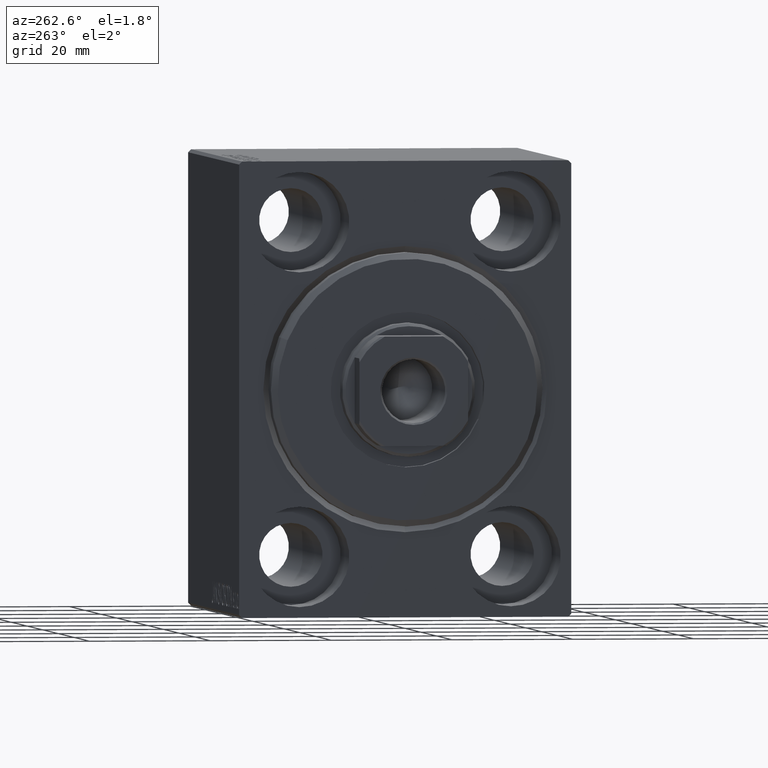
[diagram: clean part render]
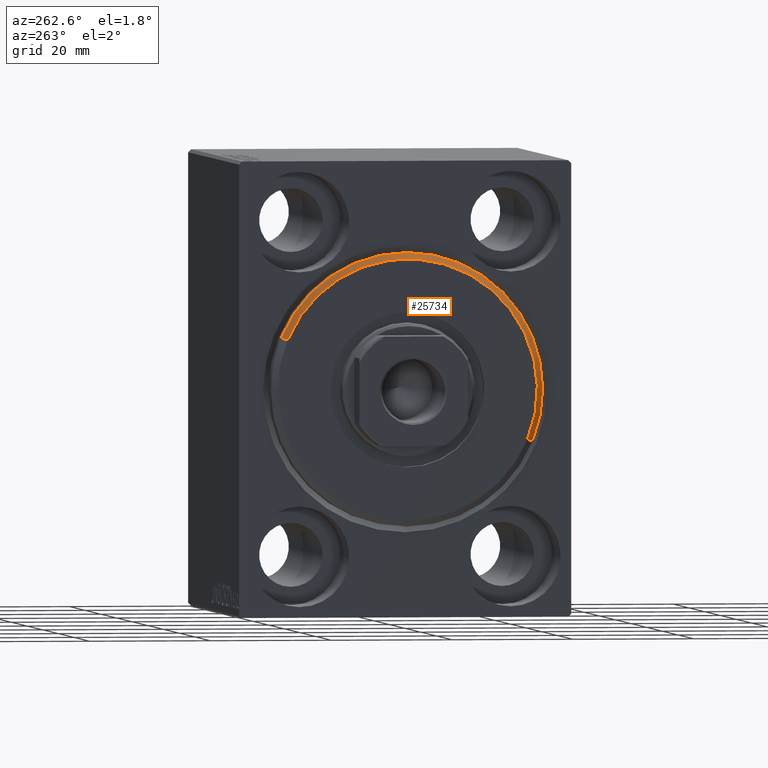
[diagram: same view with one face highlighted and labeled with its STEP entity id]
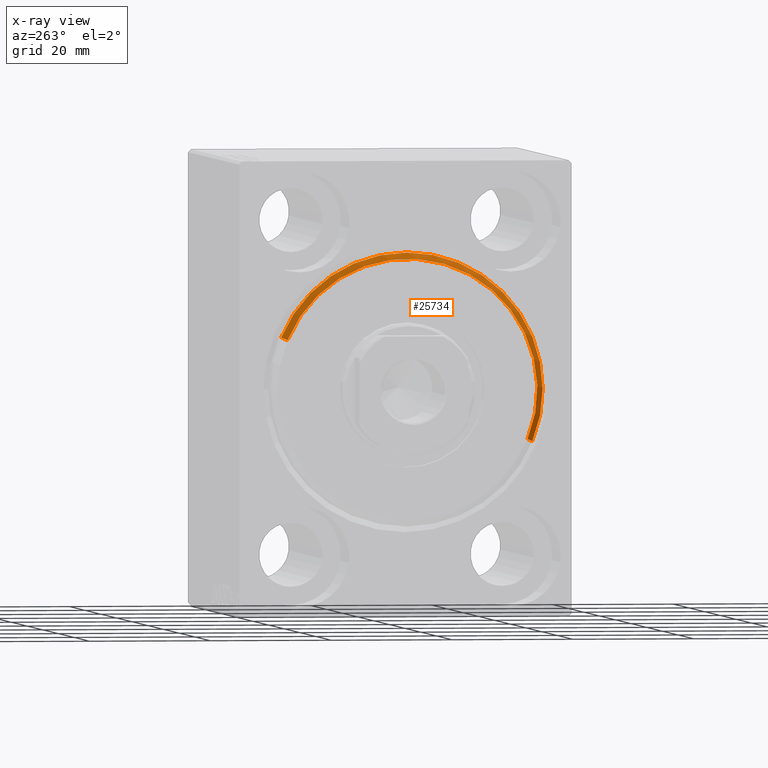
[diagram: x-ray of the same camera — body ghosted, the highlighted face saturated]
A machine part, auxiliary view. The second image highlights one B-rep face of the part: STEP entity #25734.
The next image is the same camera in x-ray: the body ghosted, the highlighted face saturated — about 0% of this face is hidden behind the body in this view.
In plain terms, the highlighted conical surface has half-angle 45 deg.
Its self-contained STEP definition (entity closure, byte-faithful):
#374 = EDGE_CURVE ( 'NONE', #26552, #15607, #5690, .T. ) ;
#1408 = CIRCLE ( 'NONE', #35502, 22.50000000000000355 ) ;
#2131 = CARTESIAN_POINT ( 'NONE',  ( 1.999999999999992228, 2.755455298081545172E-15, -22.50000000000000355 ) ) ;
#2409 = CARTESIAN_POINT ( 'NONE',  ( 1.999999999999992228, 0.000000000000000000, 22.50000000000000355 ) ) ;
#4458 = DIRECTION ( 'NONE',  ( 0.000000000000000000, 0.000000000000000000, 1.000000000000000000 ) ) ;
#5109 = FACE_OUTER_BOUND ( 'NONE', #14623, .T. ) ;
#5171 = ORIENTED_EDGE ( 'NONE', *, *, #37848, .T. ) ;
#5276 = AXIS2_PLACEMENT_3D ( 'NONE', #38267, #28924, #4458 ) ;
#5690 = LINE ( 'NONE', #19026, #22342 ) ;
#6491 = VERTEX_POINT ( 'NONE', #2409 ) ;
#8513 = CARTESIAN_POINT ( 'NONE',  ( 1.999999999999992228, 0.000000000000000000, 0.000000000000000000 ) ) ;
#9169 = ORIENTED_EDGE ( 'NONE', *, *, #374, .F. ) ;
#12479 = CARTESIAN_POINT ( 'NONE',  ( 3.000000000000000000, 0.000000000000000000, 21.50000000000000355 ) ) ;
#13761 = ORIENTED_EDGE ( 'NONE', *, *, #19724, .F. ) ;
#14533 = DIRECTION ( 'NONE',  ( -1.000000000000000000, 0.000000000000000000, 0.000000000000000000 ) ) ;
#14623 = EDGE_LOOP ( 'NONE', ( #9169, #39988, #5171, #13761 ) ) ;
#15607 = VERTEX_POINT ( 'NONE', #2131 ) ;
#18792 = DIRECTION ( 'NONE',  ( -0.7071067811865512365, 8.659560562354888485E-17, -0.7071067811865439090 ) ) ;
#18966 = VECTOR ( 'NONE', #22707, 1000.000000000000000 ) ;
#19026 = CARTESIAN_POINT ( 'NONE',  ( 3.000000000000000000, 2.632990618166810024E-15, -21.50000000000000355 ) ) ;
#19477 = CONICAL_SURFACE ( 'NONE', #5276, 21.50000000000000355, 0.7853981633974431720 ) ;
#19559 = DIRECTION ( 'NONE',  ( 0.000000000000000000, 0.000000000000000000, -1.000000000000000000 ) ) ;
#19724 = EDGE_CURVE ( 'NONE', #15607, #6491, #1408, .T. ) ;
#21196 = CARTESIAN_POINT ( 'NONE',  ( 3.000000000000000000, 0.000000000000000000, 21.50000000000000355 ) ) ;
#21856 = VERTEX_POINT ( 'NONE', #21196 ) ;
#22342 = VECTOR ( 'NONE', #18792, 1000.000000000000000 ) ;
#22695 = CARTESIAN_POINT ( 'NONE',  ( 3.000000000000000000, 0.000000000000000000, 0.000000000000000000 ) ) ;
#22707 = DIRECTION ( 'NONE',  ( -0.7071067811865512365, 0.000000000000000000, 0.7071067811865439090 ) ) ;
#23355 = DIRECTION ( 'NONE',  ( 1.000000000000000000, -0.000000000000000000, 0.000000000000000000 ) ) ;
#25734 = ADVANCED_FACE ( 'NONE', ( #5109 ), #19477, .T. ) ;
#26552 = VERTEX_POINT ( 'NONE', #26800 ) ;
#26800 = CARTESIAN_POINT ( 'NONE',  ( 3.000000000000000000, 2.694222958124177598E-15, -21.50000000000000355 ) ) ;
#27671 = AXIS2_PLACEMENT_3D ( 'NONE', #22695, #23355, #19559 ) ;
#28924 = DIRECTION ( 'NONE',  ( -1.000000000000000000, 0.000000000000000000, 0.000000000000000000 ) ) ;
#35502 = AXIS2_PLACEMENT_3D ( 'NONE', #8513, #14533, #41670 ) ;
#37848 = EDGE_CURVE ( 'NONE', #21856, #6491, #42936, .T. ) ;
#38267 = CARTESIAN_POINT ( 'NONE',  ( 3.000000000000000000, 0.000000000000000000, 0.000000000000000000 ) ) ;
#39988 = ORIENTED_EDGE ( 'NONE', *, *, #42585, .F. ) ;
#41670 = DIRECTION ( 'NONE',  ( 0.000000000000000000, 0.000000000000000000, -1.000000000000000000 ) ) ;
#42585 = EDGE_CURVE ( 'NONE', #21856, #26552, #43977, .T. ) ;
#42936 = LINE ( 'NONE', #12479, #18966 ) ;
#43977 = CIRCLE ( 'NONE', #27671, 21.50000000000000355 ) ;